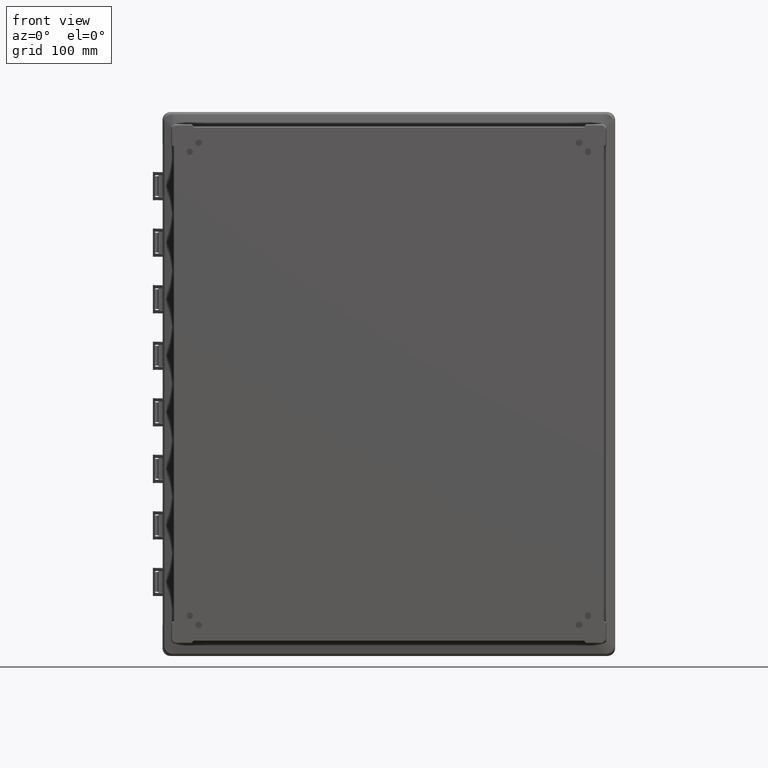
[diagram: clean part render]
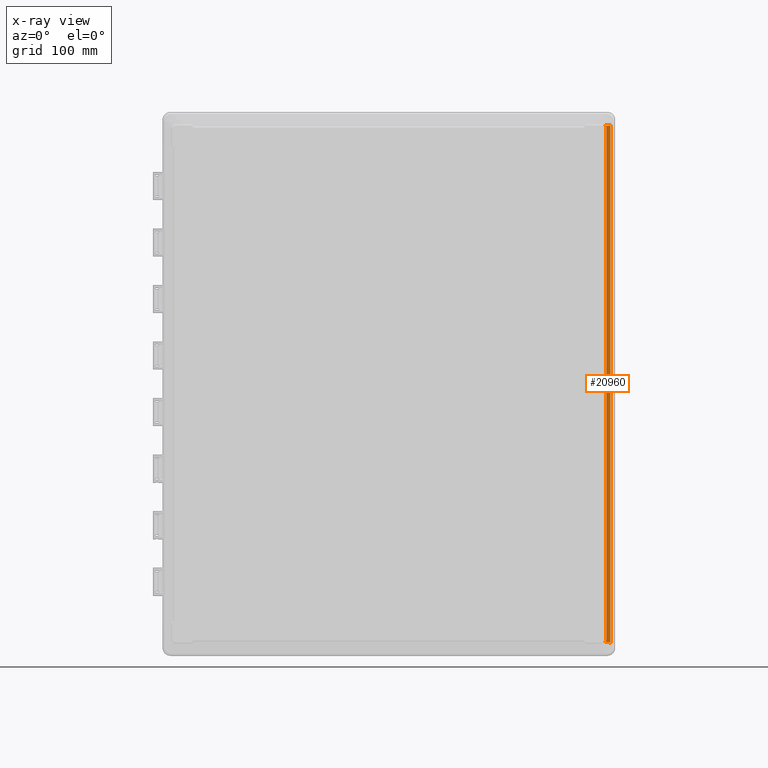
[diagram: x-ray — body ghosted, one internal face saturated and labeled with its STEP entity id]
A machine part, front view, then the same camera in x-ray: the body is ghosted and one INTERNAL B-rep face — a face not visible from any outside direction — is saturated and labeled: STEP entity #20960.
In plain terms, the highlighted planar face has unit normal (-0.2079, 0.9781, 0).
Its self-contained STEP definition (entity closure, byte-faithful):
#191 = CARTESIAN_POINT ( 'NONE',  ( 261.5159183118110500, -30.65193444039096700, 308.2327787431084400 ) ) ;
#379 = CARTESIAN_POINT ( 'NONE',  ( 265.4714128227045100, -29.81117108988624400, -310.7539106205897500 ) ) ;
#477 = CARTESIAN_POINT ( 'NONE',  ( 264.9937971727797500, -29.91269116947290000, 310.6194989766439100 ) ) ;
#977 = CARTESIAN_POINT ( 'NONE',  ( 261.2865596259592800, -30.70066580803545600, 309.0874484620425200 ) ) ;
#1055 = CARTESIAN_POINT ( 'NONE',  ( 258.4122193387000300, -31.31164898501000200, 50.79999999999999700 ) ) ;
#1173 = CARTESIAN_POINT ( 'NONE',  ( 261.2283650879066400, -30.71305872739688100, -309.2637816437433600 ) ) ;
#1243 = CARTESIAN_POINT ( 'NONE',  ( 265.5958491343409400, -29.78471974242522800, 310.8177400470249800 ) ) ;
#1720 = CARTESIAN_POINT ( 'NONE',  ( 260.9099727778613000, -30.78034436013369700, 310.0170117815226800 ) ) ;
#1774 = ORIENTED_EDGE ( 'NONE', *, *, #15947, .T. ) ;
#2199 = CARTESIAN_POINT ( 'NONE',  ( 261.0655634622206100, -30.74748607882289200, 310.5430609141718600 ) ) ;
#2423 = EDGE_CURVE ( 'NONE', #3063, #17692, #19315, .T. ) ;
#2709 = CARTESIAN_POINT ( 'NONE',  ( 261.5971086607073100, -30.63465958399099200, 307.7493283940629600 ) ) ;
#2902 = CARTESIAN_POINT ( 'NONE',  ( 261.7659439649889400, -30.59879280965781200, -310.4280978845239400 ) ) ;
#3001 = CARTESIAN_POINT ( 'NONE',  ( 263.5945067016353400, -30.21011067615194900, 310.3727772446490600 ) ) ;
#3063 = VERTEX_POINT ( 'NONE', #15286 ) ;
#3353 = B_SPLINE_CURVE_WITH_KNOTS ( 'NONE', 3,
 ( #17536, #10896, #7648, #4378 ),
 .UNSPECIFIED., .F., .F.,
 ( 4, 4 ),
 ( 0.0000000000000000000, 1.000000000000000000 ),
 .UNSPECIFIED. ) ;
#3499 = CARTESIAN_POINT ( 'NONE',  ( 261.4890062465740900, -30.65765389131489400, 308.3575999907674800 ) ) ;
#3574 = DIRECTION ( 'NONE',  ( 0.0000000000000000000, 0.0000000000000000000, 1.000000000000000000 ) ) ;
#3671 = CARTESIAN_POINT ( 'NONE',  ( 265.9416549838703600, -29.71121803295655900, -310.9395250374562900 ) ) ;
#3767 = CARTESIAN_POINT ( 'NONE',  ( 264.9967888190651600, -29.91205528914078100, 310.6203585821934300 ) ) ;
#4249 = CARTESIAN_POINT ( 'NONE',  ( 261.2522240692821400, -30.70795684590638100, 309.1900431171554800 ) ) ;
#4335 = PLANE ( 'NONE',  #14903 ) ;
#4378 = CARTESIAN_POINT ( 'NONE',  ( 261.6399873341000000, -30.62553723209000000, 306.9635018162000500 ) ) ;
#4463 = CARTESIAN_POINT ( 'NONE',  ( 261.1080733659023300, -30.73862752222345300, -309.5781408264799700 ) ) ;
#4535 = CARTESIAN_POINT ( 'NONE',  ( 265.9499227161958300, -29.70945868229425500, 310.9574159685626000 ) ) ;
#5052 = CARTESIAN_POINT ( 'NONE',  ( 260.8806346621856800, -30.78653312512914300, 310.0751744272305400 ) ) ;
#5524 = CARTESIAN_POINT ( 'NONE',  ( 261.6173378989234400, -30.63032721569237200, 310.4384992937310100 ) ) ;
#5889 = B_SPLINE_CURVE_WITH_KNOTS ( 'NONE', 3,
 ( #14361, #7801, #4535, #1243, #30081, #26727, #23460, #20194, #16894, #13590, #10277, #7028, #3767, #477, #29266, #25956, #22691, #19396, #16125, #12824, #9495, #6266, #3001, #31814, #28500, #25189, #21899, #18637, #15364, #12018, #8728, #5524, #2199, #31040 ),
 .UNSPECIFIED., .F., .F.,
 ( 4, 2, 2, 1, 1, 1, 1, 1, 2, 2, 2, 2, 2, 2, 1, 1, 1, 2, 2, 2, 4 ),
 ( 0.0000000000000000000, 0.1250000000007504000, 0.1875000000011083900, 0.2187500000012751200, 0.2343750000013498600, 0.2421875000013870800, 0.2460937500014182800, 0.2480468750014373800, 0.2490234375014505300, 0.2500000000014637200, 0.3125000000022973300, 0.3750000000031309400, 0.4375000000039645500, 0.4687500000043813800, 0.4843750000045730600, 0.4921875000046673200, 0.4960937500047144500, 0.4980468750047119500, 0.5000000000047094600, 0.7500000000023547800, 1.000000000000000000 ),
 .UNSPECIFIED. ) ;
#5974 = EDGE_CURVE ( 'NONE', #8315, #20778, #10078, .T. ) ;
#6006 = CARTESIAN_POINT ( 'NONE',  ( 261.5801109090334600, -30.63827710838871700, 307.8666041062873000 ) ) ;
#6175 = CARTESIAN_POINT ( 'NONE',  ( 261.8905832433579800, -30.57229991319866300, -310.4113683331266900 ) ) ;
#6266 = CARTESIAN_POINT ( 'NONE',  ( 263.6635966639443000, -30.19542619878544100, 310.3784581533300900 ) ) ;
#6741 = CARTESIAN_POINT ( 'NONE',  ( 261.4308160660739900, -30.67001915358529400, 308.6061613984465500 ) ) ;
#6817 = CARTESIAN_POINT ( 'NONE',  ( 266.4073542377000200, -29.61223061380999900, -311.1771010157000300 ) ) ;
#6920 = CARTESIAN_POINT ( 'NONE',  ( 266.4073542377000200, -29.61223061380999900, -311.1771010157000300 ) ) ;
#6954 = CARTESIAN_POINT ( 'NONE',  ( 261.6399873341000000, -30.62553723209000000, -306.9635018162000500 ) ) ;
#7028 = CARTESIAN_POINT ( 'NONE',  ( 265.0006039671542300, -29.91124437114427100, 310.6214569258409600 ) ) ;
#7524 = CARTESIAN_POINT ( 'NONE',  ( 261.2265198875753100, -30.71341331223941800, 309.2638668747406400 ) ) ;
#7648 = CARTESIAN_POINT ( 'NONE',  ( 261.6399931272396200, -30.62556448666925800, 102.3211672720667200 ) ) ;
#7732 = CARTESIAN_POINT ( 'NONE',  ( 261.0438398203367000, -30.75228078381278300, -309.7299095600640700 ) ) ;
#7801 = CARTESIAN_POINT ( 'NONE',  ( 266.1814005191304800, -29.66025878581475400, 311.0618309426496900 ) ) ;
#8286 = CARTESIAN_POINT ( 'NONE',  ( 260.8212755508654900, -30.79905868514417500, 310.1896010040308100 ) ) ;
#8315 = VERTEX_POINT ( 'NONE', #19776 ) ;
#8394 = CARTESIAN_POINT ( 'NONE',  ( 261.6399873341000000, -30.62553723209000000, 306.9635018162000500 ) ) ;
#8728 = CARTESIAN_POINT ( 'NONE',  ( 262.6308329477262800, -30.41497981442370200, 310.3360620457515900 ) ) ;
#9021 = CARTESIAN_POINT ( 'NONE',  ( 261.6399873341000000, -30.62553723209000000, -306.9635018162000500 ) ) ;
#9215 = CARTESIAN_POINT ( 'NONE',  ( 261.5682359476252300, -30.64080537725480000, 307.9404859152065200 ) ) ;
#9399 = CARTESIAN_POINT ( 'NONE',  ( 262.5105518318494000, -30.44052152168548600, -310.3419317521535300 ) ) ;
#9495 = CARTESIAN_POINT ( 'NONE',  ( 263.7180889925120900, -30.18384437699833000, 310.3833330645917400 ) ) ;
#10003 = CARTESIAN_POINT ( 'NONE',  ( 261.3862023995945400, -30.67949804244712600, 308.7704278828641100 ) ) ;
#10005 = B_SPLINE_CURVE_WITH_KNOTS ( 'NONE', 3,
 ( #6920, #3671, #379, #29166, #25855, #22592, #19293, #16035, #12726, #9399, #6175, #2902, #31717, #28400, #25095, #21799 ),
 .UNSPECIFIED., .F., .F.,
 ( 4, 2, 1, 2, 2, 2, 2, 1, 4 ),
 ( 0.0000000000000000000, 0.2500000000000048300, 0.3750000000000070500, 0.4375000000000057700, 0.5000000000000044400, 0.7499999999999982200, 0.8124999999999910100, 0.8749999999999837900, 1.000000000000000000 ),
 .UNSPECIFIED. ) ;
#10078 = LINE ( 'NONE', #6817, #10423 ) ;
#10209 = CARTESIAN_POINT ( 'NONE',  ( 261.6411207047976300, -30.62532481266054100, -307.2947457128333900 ) ) ;
#10277 = CARTESIAN_POINT ( 'NONE',  ( 265.0063260287778900, -29.91002813374501600, 310.6231065824886200 ) ) ;
#10423 = VECTOR ( 'NONE', #3574, 1000.000000000000000 ) ;
#10775 = CARTESIAN_POINT ( 'NONE',  ( 261.1392021240664000, -30.73193134779032900, 309.5009312200871200 ) ) ;
#10896 = CARTESIAN_POINT ( 'NONE',  ( 261.6399931272396200, -30.62556448666925800, -102.3211672720667200 ) ) ;
#10974 = CARTESIAN_POINT ( 'NONE',  ( 260.9413579751426900, -30.77406397246081200, -309.9494463737631800 ) ) ;
#11529 = CARTESIAN_POINT ( 'NONE',  ( 260.7807931907781800, -30.80760636705627000, 310.2633528654420200 ) ) ;
#11534 = FACE_OUTER_BOUND ( 'NONE', #17315, .T. ) ;
#12018 = CARTESIAN_POINT ( 'NONE',  ( 263.0929554394328400, -30.31671370868780000, 310.3379761826577700 ) ) ;
#12235 = CARTESIAN_POINT ( 'NONE',  ( 266.4073542377000200, -29.61223061380999900, 311.1771010157000300 ) ) ;
#12544 = CARTESIAN_POINT ( 'NONE',  ( 261.5675721170832700, -30.64094670866224100, 307.9446067542278900 ) ) ;
#12573 = VERTEX_POINT ( 'NONE', #21095 ) ;
#12726 = CARTESIAN_POINT ( 'NONE',  ( 263.0117222861970800, -30.33399445309869300, -310.3318909674816300 ) ) ;
#12824 = CARTESIAN_POINT ( 'NONE',  ( 263.9066881886252000, -30.14375926599104400, 310.4028947665323100 ) ) ;
#12916 = EDGE_CURVE ( 'NONE', #12573, #19171, #17998, .T. ) ;
#13035 = ORIENTED_EDGE ( 'NONE', *, *, #22178, .T. ) ;
#13315 = CARTESIAN_POINT ( 'NONE',  ( 261.3342865606775800, -30.69052761932599800, 308.9379848231129100 ) ) ;
#13521 = CARTESIAN_POINT ( 'NONE',  ( 261.6172235399011500, -30.63040431186458100, -307.6200070080070600 ) ) ;
#13590 = CARTESIAN_POINT ( 'NONE',  ( 265.0196728725632100, -29.90719122584001300, 310.6269707655857800 ) ) ;
#14076 = CARTESIAN_POINT ( 'NONE',  ( 261.0674507222499900, -30.74713065954829700, 309.6798631398791600 ) ) ;
#14285 = CARTESIAN_POINT ( 'NONE',  ( 260.9038416905857500, -30.78203830491289100, -310.0255696059352900 ) ) ;
#14361 = CARTESIAN_POINT ( 'NONE',  ( 266.4073542377000200, -29.61223061380999900, 311.1771010157000300 ) ) ;
#14868 = CARTESIAN_POINT ( 'NONE',  ( 260.6572971645982800, -30.83371315155051200, 310.4770378012655700 ) ) ;
#14903 = AXIS2_PLACEMENT_3D ( 'NONE', #1055, #29871, #26525 ) ;
#15080 = ORIENTED_EDGE ( 'NONE', *, *, #12916, .T. ) ;
#15286 = CARTESIAN_POINT ( 'NONE',  ( 260.4930757000774400, -30.86902122699322200, 310.7255073096574200 ) ) ;
#15364 = CARTESIAN_POINT ( 'NONE',  ( 263.5078966297953700, -30.22851910789089700, 310.3664057927791800 ) ) ;
#15852 = CARTESIAN_POINT ( 'NONE',  ( 261.5667212505719000, -30.64112785216382300, 307.9498634287040200 ) ) ;
#15947 = EDGE_CURVE ( 'NONE', #19171, #17692, #3353, .T. ) ;
#16035 = CARTESIAN_POINT ( 'NONE',  ( 263.6446798335749700, -30.19945517314493300, -310.3762255867757200 ) ) ;
#16125 = CARTESIAN_POINT ( 'NONE',  ( 264.0659923376321100, -30.10990047035040000, 310.4223520980939400 ) ) ;
#16613 = CARTESIAN_POINT ( 'NONE',  ( 261.3336286935294200, -30.69066738231663600, 308.9401008007636200 ) ) ;
#16825 = CARTESIAN_POINT ( 'NONE',  ( 261.5438406788752000, -30.64600232048978200, -308.0989250485787900 ) ) ;
#16894 = CARTESIAN_POINT ( 'NONE',  ( 265.0463479486477900, -29.90152134498984500, 310.6347590370001500 ) ) ;
#17315 = EDGE_LOOP ( 'NONE', ( #23244, #26384, #29600, #13035, #15080, #1774 ) ) ;
#17403 = CARTESIAN_POINT ( 'NONE',  ( 260.9737576628058400, -30.76689176241973900, 309.8830286234187400 ) ) ;
#17536 = CARTESIAN_POINT ( 'NONE',  ( 261.6399873341000000, -30.62553723209000000, -306.9635018162000500 ) ) ;
#17619 = CARTESIAN_POINT ( 'NONE',  ( 260.8276367610660000, -30.79823616271392300, -310.1718390478361600 ) ) ;
#17692 = VERTEX_POINT ( 'NONE', #8394 ) ;
#17998 = B_SPLINE_CURVE_WITH_KNOTS ( 'NONE', 3,
 ( #27462, #24134, #20889, #17619, #14285, #10974, #7732, #4463, #1173, #30008, #26654, #23391, #20122, #16825, #13521, #10209, #6954 ),
 .UNSPECIFIED., .F., .F.,
 ( 4, 1, 2, 2, 2, 2, 2, 2, 4 ),
 ( 0.002825832553492431500, 0.1250000000000047700, 0.1875000000000252300, 0.2500000000000456900, 0.3750000000000299800, 0.5000000000000142100, 0.6249999999999984500, 0.7499999999999826800, 1.000000000000000000 ),
 .UNSPECIFIED. ) ;
#18193 = CARTESIAN_POINT ( 'NONE',  ( 260.5722454146039700, -30.85173591692696600, 310.6093854199868400 ) ) ;
#18637 = CARTESIAN_POINT ( 'NONE',  ( 263.5083590790032400, -30.22842081621781000, 310.3664380092228000 ) ) ;
#19111 = CARTESIAN_POINT ( 'NONE',  ( 261.5654406070095200, -30.64140048301479900, 307.9577476313569400 ) ) ;
#19171 = VERTEX_POINT ( 'NONE', #9021 ) ;
#19293 = CARTESIAN_POINT ( 'NONE',  ( 263.7741994739345700, -30.17192492372136300, -310.3884192836384300 ) ) ;
#19315 = B_SPLINE_CURVE_WITH_KNOTS ( 'NONE', 3,
 ( #21435, #18193, #14868, #11529, #8286, #5052, #1720, #30580, #27245, #23928, #20694, #17403, #14076, #10775, #7524, #4249, #977, #29785, #26438, #23190, #19907, #16613, #13315, #10003, #6741, #3499, #191, #28986, #25681, #22414, #19111, #15852, #12544, #9215, #6006, #2709, #31529, #28228, #24901 ),
 .UNSPECIFIED., .F., .F.,
 ( 4, 2, 2, 1, 1, 1, 2, 2, 2, 2, 1, 1, 1, 2, 2, 2, 1, 1, 1, 1, 1, 2, 2, 2, 4 ),
 ( 0.0000000000000000000, 0.1249999999999642800, 0.1874999999999465400, 0.2187499999999646700, 0.2343749999999914200, 0.2421875000000048800, 0.2460937500000373000, 0.2500000000000697200, 0.3750000000013009000, 0.4375000000019165800, 0.4687500000022166700, 0.4843750000023667700, 0.4921875000024419900, 0.4960937500024794600, 0.5000000000025169900, 0.6250000000034017200, 0.6875000000038593600, 0.7187500000040721900, 0.7343750000041822100, 0.7421875000042371700, 0.7460937500042846800, 0.7480468750042883500, 0.7500000000042919000, 0.8750000000021459500, 1.000000000000000000 ),
 .UNSPECIFIED. ) ;
#19396 = CARTESIAN_POINT ( 'NONE',  ( 264.4495058402247300, -30.02838454889592900, 310.4870835325773400 ) ) ;
#19776 = CARTESIAN_POINT ( 'NONE',  ( 266.4073542377000200, -29.61223061380999900, -311.1771010157000300 ) ) ;
#19907 = CARTESIAN_POINT ( 'NONE',  ( 261.3313703255346400, -30.69114716815629900, 308.9473597307995200 ) ) ;
#20122 = CARTESIAN_POINT ( 'NONE',  ( 261.5118999252442800, -30.65279153725874300, -308.2640802164097000 ) ) ;
#20194 = CARTESIAN_POINT ( 'NONE',  ( 265.0996230295868900, -29.89019746312667500, 310.6505749470667300 ) ) ;
#20694 = CARTESIAN_POINT ( 'NONE',  ( 260.9719032608622900, -30.76728287388366900, 309.8870301208172000 ) ) ;
#20778 = VERTEX_POINT ( 'NONE', #12235 ) ;
#20889 = CARTESIAN_POINT ( 'NONE',  ( 260.7105923182758100, -30.82311472703596800, -310.3849495254831400 ) ) ;
#20960 = ADVANCED_FACE ( 'NONE', ( #11534 ), #4335, .T. ) ;
#21095 = CARTESIAN_POINT ( 'NONE',  ( 260.4900777278806500, -30.86977011104922400, -310.7217405881529000 ) ) ;
#21435 = CARTESIAN_POINT ( 'NONE',  ( 260.4930757000774400, -30.86902122699322200, 310.7255073096574200 ) ) ;
#21799 = CARTESIAN_POINT ( 'NONE',  ( 260.4900777278806500, -30.86977011104922400, -310.7217405881529000 ) ) ;
#21899 = CARTESIAN_POINT ( 'NONE',  ( 263.5121372443094300, -30.22761778013044800, 310.3666991463051100 ) ) ;
#22178 = EDGE_CURVE ( 'NONE', #8315, #12573, #10005, .T. ) ;
#22414 = CARTESIAN_POINT ( 'NONE',  ( 261.5624220417762400, -30.64204302977505300, 307.9761384134510000 ) ) ;
#22592 = CARTESIAN_POINT ( 'NONE',  ( 264.0263287612665400, -30.11833318930974100, -310.4185660290224900 ) ) ;
#22691 = CARTESIAN_POINT ( 'NONE',  ( 264.6087201334973400, -29.99454201773302800, 310.5217174394646800 ) ) ;
#23190 = CARTESIAN_POINT ( 'NONE',  ( 261.3279553651086100, -30.69187266429763700, 308.9583135588797500 ) ) ;
#23244 = ORIENTED_EDGE ( 'NONE', *, *, #2423, .F. ) ;
#23391 = CARTESIAN_POINT ( 'NONE',  ( 261.4345972998006600, -30.66922271753106700, -308.5953816117202600 ) ) ;
#23460 = CARTESIAN_POINT ( 'NONE',  ( 265.2058679013850900, -29.86761433613451200, 310.6831622180363900 ) ) ;
#23928 = CARTESIAN_POINT ( 'NONE',  ( 260.9671963009111000, -30.76827561212304800, 309.8971585545335800 ) ) ;
#24134 = CARTESIAN_POINT ( 'NONE',  ( 260.5803701548626900, -30.85079430234434700, -310.5892339914946700 ) ) ;
#24901 = CARTESIAN_POINT ( 'NONE',  ( 261.6399873341000000, -30.62553723209000000, 306.9635018162000500 ) ) ;
#25095 = CARTESIAN_POINT ( 'NONE',  ( 260.7576484339942900, -30.81311264087331000, -310.6407807681628700 ) ) ;
#25189 = CARTESIAN_POINT ( 'NONE',  ( 263.5179036049724500, -30.22639216171930300, 310.3670994637514000 ) ) ;
#25681 = CARTESIAN_POINT ( 'NONE',  ( 261.5562634004599000, -30.64335374701014600, 308.0128969958818200 ) ) ;
#25855 = CARTESIAN_POINT ( 'NONE',  ( 264.4005408297613300, -30.03879195869504700, -310.4728722717609900 ) ) ;
#25956 = CARTESIAN_POINT ( 'NONE',  ( 264.8531610443735600, -29.94258404435337100, 310.5800802093836500 ) ) ;
#26384 = ORIENTED_EDGE ( 'NONE', *, *, #30153, .F. ) ;
#26438 = CARTESIAN_POINT ( 'NONE',  ( 261.3197928394333200, -30.69360671988344800, 308.9843297521134100 ) ) ;
#26525 = DIRECTION ( 'NONE',  ( -0.9781476007337970300, -0.2079116908177993400, 0.0000000000000000000 ) ) ;
#26654 = CARTESIAN_POINT ( 'NONE',  ( 261.3889790143665600, -30.67891918343223200, -308.7632012695830800 ) ) ;
#26727 = CARTESIAN_POINT ( 'NONE',  ( 265.2963944112069600, -29.84837199765680500, 310.7127252006160900 ) ) ;
#27245 = CARTESIAN_POINT ( 'NONE',  ( 260.9601225468886700, -30.76976751412214400, 309.9123216082347800 ) ) ;
#27462 = CARTESIAN_POINT ( 'NONE',  ( 260.4900777278806500, -30.86977011104922400, -310.7217405881529000 ) ) ;
#28228 = CARTESIAN_POINT ( 'NONE',  ( 261.6408393298156100, -30.62531428249896200, 307.2162971586878400 ) ) ;
#28400 = CARTESIAN_POINT ( 'NONE',  ( 261.1335308104758600, -30.73321637533601000, -310.5400705664061400 ) ) ;
#28500 = CARTESIAN_POINT ( 'NONE',  ( 263.5320521272809100, -30.22338495826374700, 310.3680954388843200 ) ) ;
#28986 = CARTESIAN_POINT ( 'NONE',  ( 261.5434606840289600, -30.64607760570129700, 308.0863204836957200 ) ) ;
#29166 = CARTESIAN_POINT ( 'NONE',  ( 264.7628073107467200, -29.96178984108848600, -310.5544368884871500 ) ) ;
#29266 = CARTESIAN_POINT ( 'NONE',  ( 264.9402266525964400, -29.92407768458384300, 310.6041201890290000 ) ) ;
#29600 = ORIENTED_EDGE ( 'NONE', *, *, #5974, .F. ) ;
#29785 = CARTESIAN_POINT ( 'NONE',  ( 261.3026708662666800, -30.69724390520078200, 309.0381848126670500 ) ) ;
#29871 = DIRECTION ( 'NONE',  ( -0.2079116908177993700, 0.9781476007337971400, 0.0000000000000000000 ) ) ;
#30008 = CARTESIAN_POINT ( 'NONE',  ( 261.2838084980735400, -30.70127386676454200, -309.1031785057235200 ) ) ;
#30081 = CARTESIAN_POINT ( 'NONE',  ( 265.4766808176253800, -29.81005024036280200, 310.7740079941651200 ) ) ;
#30153 = EDGE_CURVE ( 'NONE', #20778, #3063, #5889, .T. ) ;
#30580 = CARTESIAN_POINT ( 'NONE',  ( 260.9435251860939500, -30.77326795390245800, 309.9474948203474600 ) ) ;
#31040 = CARTESIAN_POINT ( 'NONE',  ( 260.4930757000774400, -30.86902122699322200, 310.7255073096574200 ) ) ;
#31529 = CARTESIAN_POINT ( 'NONE',  ( 261.6274860117895900, -30.62817809045741100, 307.4242579427249200 ) ) ;
#31717 = CARTESIAN_POINT ( 'NONE',  ( 261.5125592306865800, -30.65265139756081000, -310.4689426522619400 ) ) ;
#31814 = CARTESIAN_POINT ( 'NONE',  ( 263.5631229466633800, -30.21678104251383700, 310.3703486664737700 ) ) ;